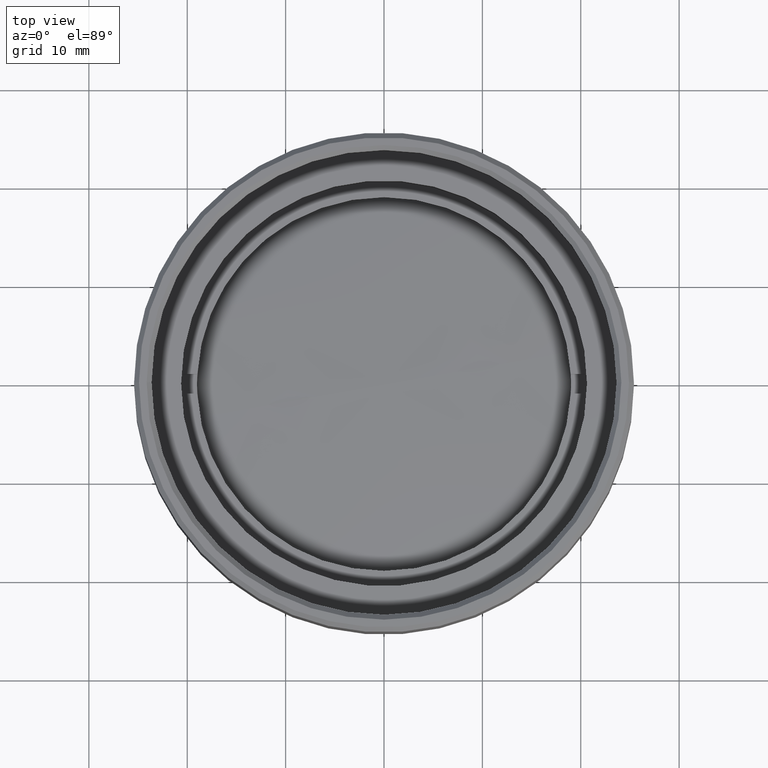
[diagram: clean part render]
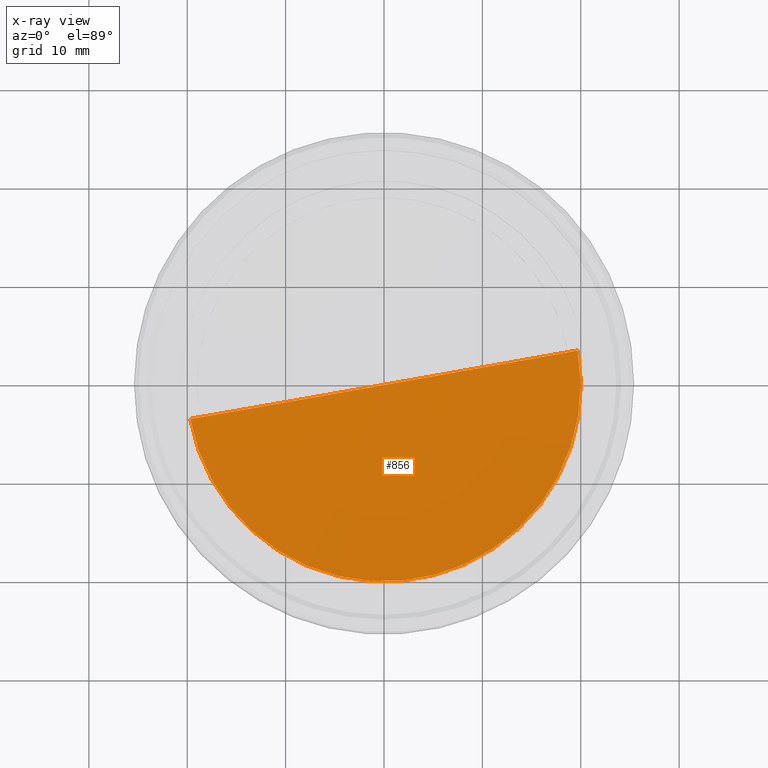
[diagram: x-ray — body ghosted, one internal face saturated and labeled with its STEP entity id]
A machine part, top view, then the same camera in x-ray: the body is ghosted and one INTERNAL B-rep face — a face not visible from any outside direction — is saturated and labeled: STEP entity #856.
In plain terms, the highlighted spherical surface has radius 162.392 mm.
Its self-contained STEP definition (entity closure, byte-faithful):
#18 = CARTESIAN_POINT ( 'NONE',  ( 0.000000000000000000, 0.000000000000000000, 158.4720000000000084 ) ) ;
#47 = DIRECTION ( 'NONE',  ( 0.000000000000000000, 1.000000000000000000, 0.000000000000000000 ) ) ;
#66 = CARTESIAN_POINT ( 'NONE',  ( 0.000000000000000000, 0.000000000000000000, -2.683706271915774710 ) ) ;
#120 = AXIS2_PLACEMENT_3D ( 'NONE', #789, #47, #1390 ) ;
#231 = VERTEX_POINT ( 'NONE', #1081 ) ;
#262 = EDGE_CURVE ( 'NONE', #231, #1045, #920, .T. ) ;
#337 = DIRECTION ( 'NONE',  ( -0.000000000000000000, -0.000000000000000000, -1.000000000000000000 ) ) ;
#604 = DIRECTION ( 'NONE',  ( -1.000000000000000000, 0.000000000000000000, 0.000000000000000000 ) ) ;
#663 = ORIENTED_EDGE ( 'NONE', *, *, #1058, .T. ) ;
#668 = DIRECTION ( 'NONE',  ( 0.000000000000000000, 0.000000000000000000, 1.000000000000000000 ) ) ;
#789 = CARTESIAN_POINT ( 'NONE',  ( 0.000000000000000000, 0.000000000000000000, 158.4720000000000084 ) ) ;
#856 = ADVANCED_FACE ( 'NONE', ( #1376 ), #1213, .F. ) ;
#920 = CIRCLE ( 'NONE', #120, 162.3920000000000243 ) ;
#1045 = VERTEX_POINT ( 'NONE', #1266 ) ;
#1058 = EDGE_CURVE ( 'NONE', #1045, #231, #1505, .T. ) ;
#1081 = CARTESIAN_POINT ( 'NONE',  ( 20.00000000000000000, -2.449293598294709668E-15, -2.683706271915774710 ) ) ;
#1171 = EDGE_LOOP ( 'NONE', ( #663, #1212 ) ) ;
#1212 = ORIENTED_EDGE ( 'NONE', *, *, #262, .T. ) ;
#1213 = SPHERICAL_SURFACE ( 'NONE', #1305, 162.3919999999999959 ) ;
#1266 = CARTESIAN_POINT ( 'NONE',  ( -20.00000000000000000, 0.000000000000000000, -2.683706271915774710 ) ) ;
#1305 = AXIS2_PLACEMENT_3D ( 'NONE', #18, #337, #604 ) ;
#1376 = FACE_OUTER_BOUND ( 'NONE', #1171, .T. ) ;
#1390 = DIRECTION ( 'NONE',  ( 0.000000000000000000, 0.000000000000000000, 1.000000000000000000 ) ) ;
#1505 = CIRCLE ( 'NONE', #1784, 20.00000000000000000 ) ;
#1584 = DIRECTION ( 'NONE',  ( 1.000000000000000000, 0.000000000000000000, 0.000000000000000000 ) ) ;
#1784 = AXIS2_PLACEMENT_3D ( 'NONE', #66, #668, #1584 ) ;